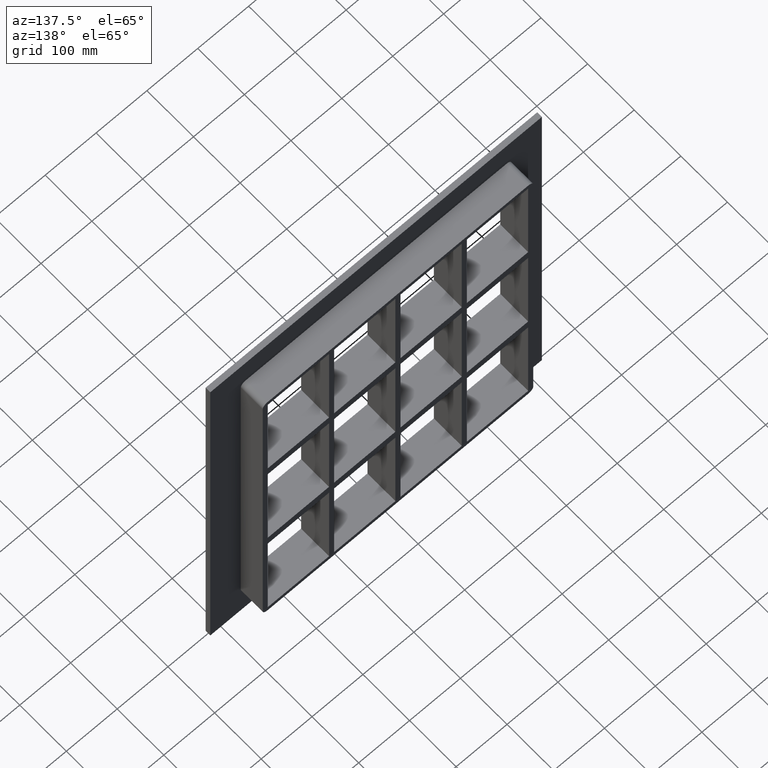
[diagram: clean part render]
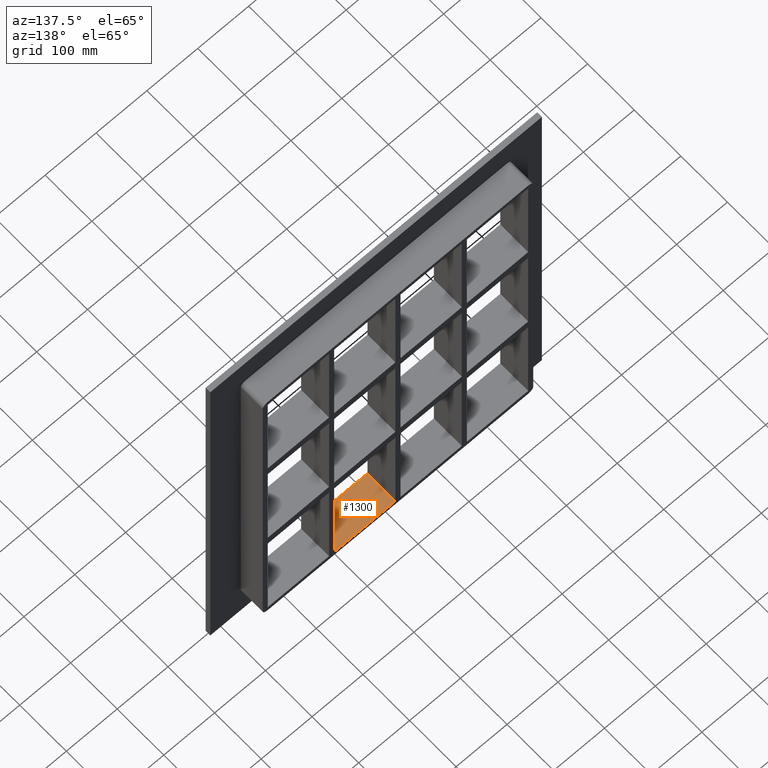
[diagram: same view with one face highlighted and labeled with its STEP entity id]
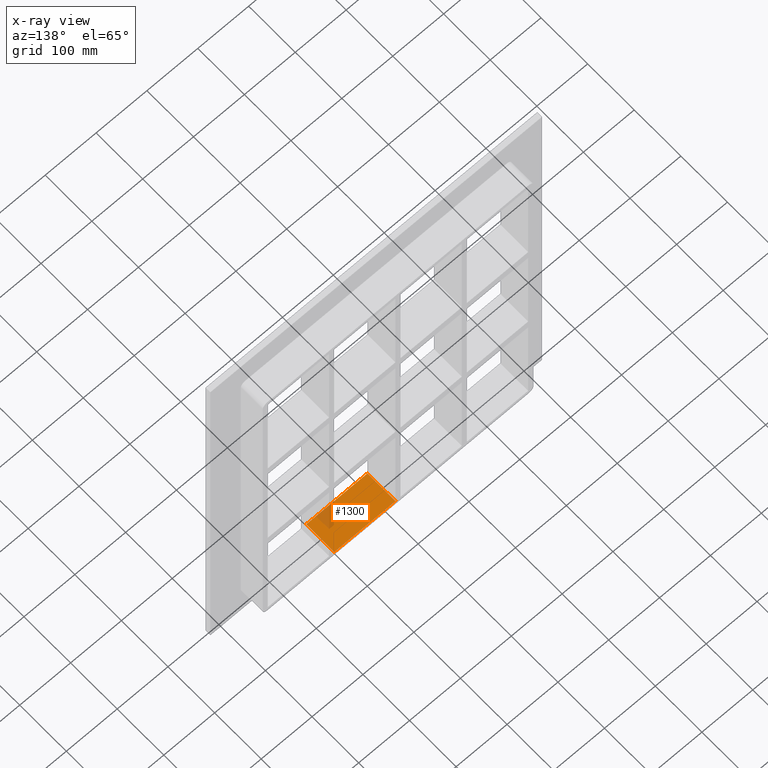
[diagram: x-ray of the same camera — body ghosted, the highlighted face saturated]
A machine part, auxiliary view. The second image highlights one B-rep face of the part: STEP entity #1300.
The next image is the same camera in x-ray: the body ghosted, the highlighted face saturated — about 9% of this face is hidden behind the body in this view.
In plain terms, the highlighted planar face has unit normal (0, 0, -1).
Its self-contained STEP definition (entity closure, byte-faithful):
#960=CARTESIAN_POINT('',(125.49999999999866,57.0,-346.99999999999994));
#961=VERTEX_POINT('',#960);
#978=CARTESIAN_POINT('',(5.000000000007283,57.0,-346.99999999998403));
#979=VERTEX_POINT('',#978);
#986=CARTESIAN_POINT('',(5.000000000007276,57.0,-346.99999999999994));
#987=DIRECTION('',(1.0,0.0,0.0));
#988=VECTOR('',#987,120.49999999999137);
#989=LINE('',#986,#988);
#990=EDGE_CURVE('',#979,#961,#989,.T.);
#1078=CARTESIAN_POINT('',(125.49999999999866,-3.0,-346.99999999999994));
#1079=VERTEX_POINT('',#1078);
#1080=CARTESIAN_POINT('',(125.49999999999866,-3.0,-346.99999999999994));
#1081=DIRECTION('',(0.0,1.0,0.0));
#1082=VECTOR('',#1081,60.000000000000007);
#1083=LINE('',#1080,#1082);
#1084=EDGE_CURVE('',#1079,#961,#1083,.T.);
#1242=CARTESIAN_POINT('',(5.000000000007283,-3.0,-346.99999999998408));
#1243=VERTEX_POINT('',#1242);
#1250=CARTESIAN_POINT('',(5.000000000007283,57.000000000000007,-346.99999999999994));
#1251=DIRECTION('',(0.0,-1.0,0.0));
#1252=VECTOR('',#1251,60.000000000000007);
#1253=LINE('',#1250,#1252);
#1254=EDGE_CURVE('',#979,#1243,#1253,.T.);
#1284=CARTESIAN_POINT('',(255.99999999999997,0.0,-346.99999999999994));
#1285=DIRECTION('',(0.0,0.0,-1.0));
#1286=DIRECTION('',(-1.0,0.0,0.0));
#1287=AXIS2_PLACEMENT_3D('',#1284,#1285,#1286);
#1288=PLANE('',#1287);
#1289=ORIENTED_EDGE('',*,*,#1084,.T.);
#1290=ORIENTED_EDGE('',*,*,#990,.F.);
#1291=ORIENTED_EDGE('',*,*,#1254,.T.);
#1292=CARTESIAN_POINT('',(125.49999999999865,-3.0,-346.99999999999994));
#1293=DIRECTION('',(-1.0,0.0,0.0));
#1294=VECTOR('',#1293,120.49999999999137);
#1295=LINE('',#1292,#1294);
#1296=EDGE_CURVE('',#1079,#1243,#1295,.T.);
#1297=ORIENTED_EDGE('',*,*,#1296,.F.);
#1298=EDGE_LOOP('',(#1289,#1290,#1291,#1297));
#1299=FACE_OUTER_BOUND('',#1298,.T.);
#1300=ADVANCED_FACE('',(#1299),#1288,.F.);